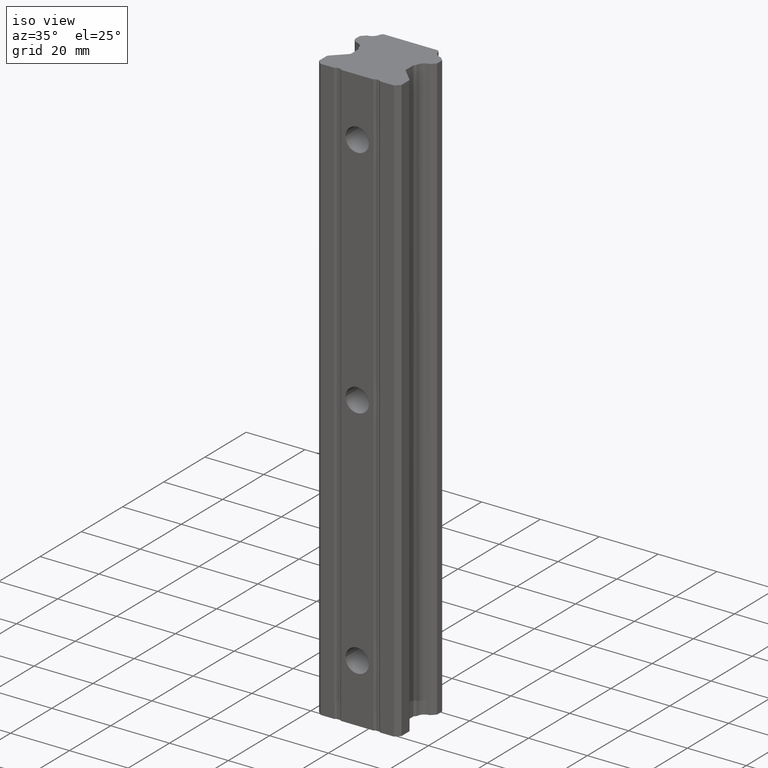
[diagram: clean part render]
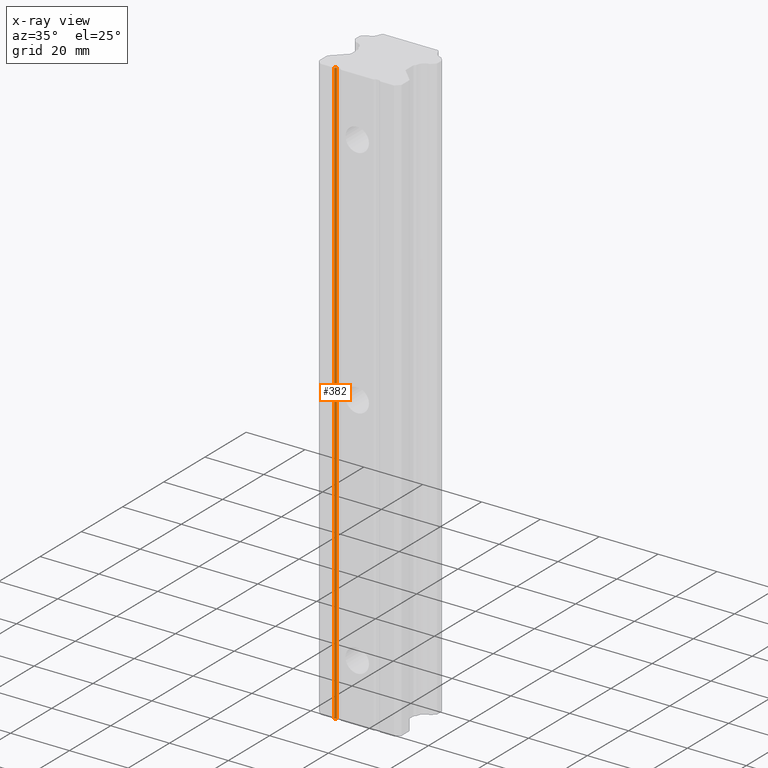
[diagram: x-ray — body ghosted, one internal face saturated and labeled with its STEP entity id]
A machine part, iso view, then the same camera in x-ray: the body is ghosted and one INTERNAL B-rep face — a face not visible from any outside direction — is saturated and labeled: STEP entity #382.
In plain terms, the highlighted planar face has unit normal (0.7071, -0.7071, 0).
Its self-contained STEP definition (entity closure, byte-faithful):
#25 = VERTEX_POINT ( 'NONE', #669 ) ;
#97 = VERTEX_POINT ( 'NONE', #1033 ) ;
#253 = EDGE_CURVE ( 'NONE', #25, #97, #1208, .T. ) ;
#269 = EDGE_CURVE ( 'NONE', #304, #25, #1462, .T. ) ;
#273 = EDGE_CURVE ( 'NONE', #304, #386, #1473, .T. ) ;
#295 = EDGE_CURVE ( 'NONE', #97, #386, #1325, .T. ) ;
#296 = ORIENTED_EDGE ( 'NONE', *, *, #273, .F. ) ;
#299 = EDGE_LOOP ( 'NONE', ( #296, #387, #301, #302 ) ) ;
#301 = ORIENTED_EDGE ( 'NONE', *, *, #253, .T. ) ;
#302 = ORIENTED_EDGE ( 'NONE', *, *, #295, .T. ) ;
#304 = VERTEX_POINT ( 'NONE', #1447 ) ;
#382 = ADVANCED_FACE ( 'NONE', ( #1399 ), #1398, .T. ) ;
#386 = VERTEX_POINT ( 'NONE', #1481 ) ;
#387 = ORIENTED_EDGE ( 'NONE', *, *, #269, .T. ) ;
#669 = CARTESIAN_POINT ( 'NONE',  ( -7.250000000000008900, -25.49999999999999600, -100.0000000000000000 ) ) ;
#1033 = CARTESIAN_POINT ( 'NONE',  ( -7.250000000000008900, -25.49999999999999600, 100.0000000000000000 ) ) ;
#1137 = DIRECTION ( 'NONE',  ( 0.0000000000000000000, 0.0000000000000000000, 1.000000000000000000 ) ) ;
#1138 = VECTOR ( 'NONE', #1137, 1000.000000000000000 ) ;
#1139 = CARTESIAN_POINT ( 'NONE',  ( -7.250000000000034600, -25.49999999999996800, -100.0000000000000000 ) ) ;
#1208 = LINE ( 'NONE', #1139, #1138 ) ;
#1324 = CARTESIAN_POINT ( 'NONE',  ( -7.750000000000000000, -26.00000000000000400, 100.0000000000000000 ) ) ;
#1325 = LINE ( 'NONE', #1324, #1450 ) ;
#1393 = DIRECTION ( 'NONE',  ( 0.7071067811864976100, 0.7071067811865975300, 0.0000000000000000000 ) ) ;
#1394 = DIRECTION ( 'NONE',  ( 0.7071067811865975300, -0.7071067811864976100, 0.0000000000000000000 ) ) ;
#1395 = CARTESIAN_POINT ( 'NONE',  ( -7.750000000000000000, -26.00000000000000400, -100.0000000000000000 ) ) ;
#1396 = AXIS2_PLACEMENT_3D ( 'NONE', #1395, #1394, #1393 ) ;
#1398 = PLANE ( 'NONE',  #1396 ) ;
#1399 = FACE_OUTER_BOUND ( 'NONE', #299, .T. ) ;
#1447 = CARTESIAN_POINT ( 'NONE',  ( -7.750000000000000900, -26.00000000000000400, -100.0000000000000000 ) ) ;
#1449 = DIRECTION ( 'NONE',  ( -0.7071067811864976100, -0.7071067811865975300, 0.0000000000000000000 ) ) ;
#1450 = VECTOR ( 'NONE', #1449, 1000.000000000000100 ) ;
#1460 = DIRECTION ( 'NONE',  ( 0.0000000000000000000, 0.0000000000000000000, 1.000000000000000000 ) ) ;
#1461 = VECTOR ( 'NONE', #1460, 1000.000000000000000 ) ;
#1462 = LINE ( 'NONE', #1480, #1479 ) ;
#1472 = CARTESIAN_POINT ( 'NONE',  ( -7.750000000000000000, -26.00000000000000400, -100.0000000000000000 ) ) ;
#1473 = LINE ( 'NONE', #1472, #1461 ) ;
#1478 = DIRECTION ( 'NONE',  ( 0.7071067811864976100, 0.7071067811865975300, 0.0000000000000000000 ) ) ;
#1479 = VECTOR ( 'NONE', #1478, 1000.000000000000100 ) ;
#1480 = CARTESIAN_POINT ( 'NONE',  ( -7.750000000000000000, -26.00000000000000400, -100.0000000000000000 ) ) ;
#1481 = CARTESIAN_POINT ( 'NONE',  ( -7.750000000000000900, -26.00000000000000400, 100.0000000000000000 ) ) ;